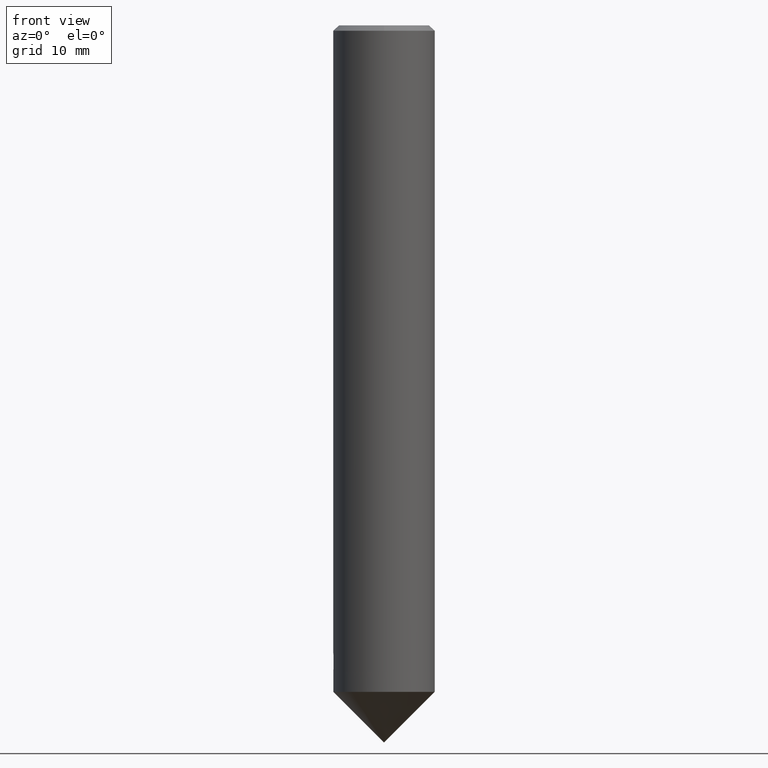
[diagram: clean part render]
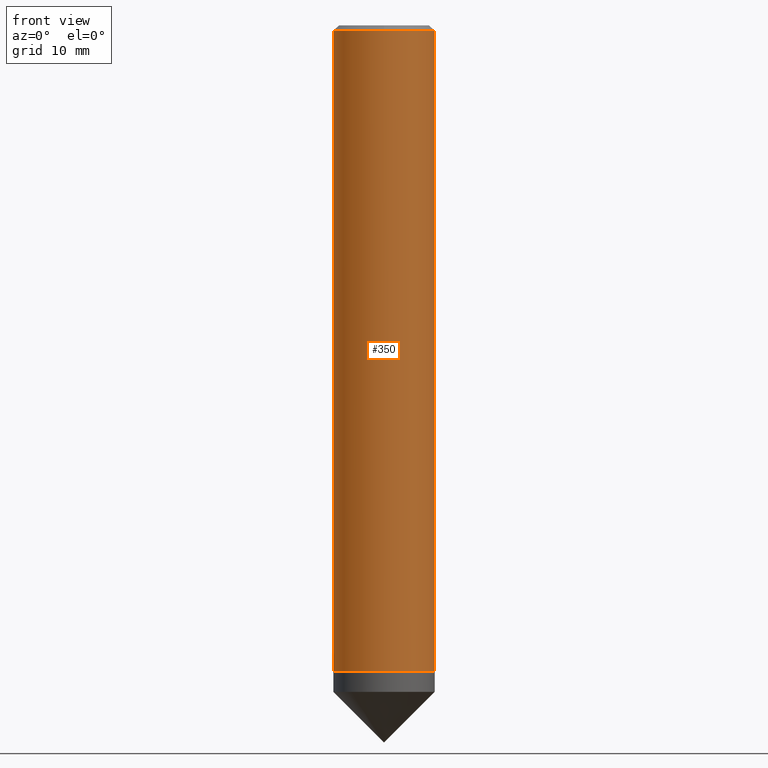
[diagram: same view with one face highlighted and labeled with its STEP entity id]
A machine part, front view. The second image highlights one B-rep face of the part: STEP entity #350.
In plain terms, the highlighted cylindrical surface (partial cylindrical patch) has radius 7.5 mm, axis along (-0, -0, 1).
Its self-contained STEP definition (entity closure, byte-faithful):
#184=VERTEX_POINT('',#493);
#208=VERTEX_POINT('',#521);
#212=EDGE_CURVE('',#304,#402,#526,.T.);
#284=EDGE_CURVE('',#184,#298,#605,.T.);
#298=VERTEX_POINT('',#622);
#304=VERTEX_POINT('',#628);
#310=EDGE_CURVE('',#428,#320,#635,.T.);
#320=VERTEX_POINT('',#645);
#350=ADVANCED_FACE('',(#678),#679,.T.);
#360=EDGE_CURVE('',#298,#304,#690,.T.);
#374=EDGE_CURVE('',#402,#208,#704,.T.);
#396=EDGE_CURVE('',#428,#208,#728,.T.);
#402=VERTEX_POINT('',#734);
#428=VERTEX_POINT('',#762);
#432=EDGE_CURVE('',#320,#184,#766,.T.);
#493=CARTESIAN_POINT('',(9.18454765366783E-016,-7.5,-0.799999999999997));
#521=CARTESIAN_POINT('',(-7.47364246253125,-0.628226346351209,-95.5));
#526=ELLIPSE('',#867,16.3893911124316,7.5);
#605=CIRCLE('',#1081,7.5);
#622=CARTESIAN_POINT('',(-7.5,-9.18454765366783E-016,-0.799999999999997));
#628=CARTESIAN_POINT('',(-7.5,-3.90867229828002E-015,-92.4758135150197));
#635=LINE('',#1167,#1168);
#645=CARTESIAN_POINT('',(7.5,9.18454765366783E-016,-0.799999999999997));
#678=FACE_OUTER_BOUND('',#1286,.T.);
#679=CYLINDRICAL_SURFACE('',#1287,7.5);
#690=LINE('',#1302,#1303);
#704=ELLIPSE('',#1356,214.902812608787,7.5);
#728=CIRCLE('',#1389,7.5);
#734=CARTESIAN_POINT('',(-7.46598161521351,-0.713525417412605,-93.0511860095779));
#762=CARTESIAN_POINT('',(7.5,9.18454765366783E-016,-95.5));
#766=CIRCLE('',#1473,7.5);
#867=AXIS2_PLACEMENT_3D('',#1634,#1635,#1636);
#1081=AXIS2_PLACEMENT_3D('',#1713,#1714,#1715);
#1167=CARTESIAN_POINT('',(7.5,9.18454765366783E-016,-89.25));
#1168=VECTOR('',#1755,1.0);
#1286=EDGE_LOOP('',(#1797,#1798,#1799,#1800,#1801,#1802,#1803));
#1287=AXIS2_PLACEMENT_3D('',#1804,#1805,#1806);
#1302=CARTESIAN_POINT('',(-7.5,-9.18454765366783E-016,-89.25));
#1303=VECTOR('',#1819,1.0);
#1356=AXIS2_PLACEMENT_3D('',#1822,#1823,#1824);
#1389=AXIS2_PLACEMENT_3D('',#1850,#1851,#1852);
#1473=AXIS2_PLACEMENT_3D('',#1888,#1889,#1890);
#1634=CARTESIAN_POINT('',(0.0,0.0,-106.01));
#1635=DIRECTION('',(0.825789462960248,-0.329639223559035,0.457613095480474));
#1636=DIRECTION('',(-0.425003055891174,0.169653021306386,0.88915142402449));
#1713=CARTESIAN_POINT('',(0.0,0.0,-0.799999999999997));
#1714=DIRECTION('',(0.0,0.0,-1.0));
#1715=DIRECTION('',(0.0,1.0,0.0));
#1755=DIRECTION('',(-0.0,-0.0,1.0));
#1797=ORIENTED_EDGE('',*,*,#360,.T.);
#1798=ORIENTED_EDGE('',*,*,#212,.T.);
#1799=ORIENTED_EDGE('',*,*,#374,.T.);
#1800=ORIENTED_EDGE('',*,*,#396,.F.);
#1801=ORIENTED_EDGE('',*,*,#310,.T.);
#1802=ORIENTED_EDGE('',*,*,#432,.T.);
#1803=ORIENTED_EDGE('',*,*,#284,.T.);
#1804=CARTESIAN_POINT('',(0.0,0.0,-89.25));
#1805=DIRECTION('',(-0.0,-0.0,1.0));
#1806=DIRECTION('',(-1.0,0.0,0.0));
#1819=DIRECTION('',(0.0,0.0,-1.0));
#1822=CARTESIAN_POINT('',(0.0,0.0,-106.01));
#1823=DIRECTION('',(0.0348782368720624,-0.998782025129912,-0.0348994967025078));
#1824=DIRECTION('',(-0.0012179748700881,0.0348782368720695,-0.999390827019096));
#1850=CARTESIAN_POINT('',(0.0,0.0,-95.5));
#1851=DIRECTION('',(0.0,0.0,-1.0));
#1852=DIRECTION('',(-1.0,0.0,0.0));
#1888=CARTESIAN_POINT('',(0.0,0.0,-0.799999999999997));
#1889=DIRECTION('',(0.0,0.0,-1.0));
#1890=DIRECTION('',(0.0,1.0,0.0));